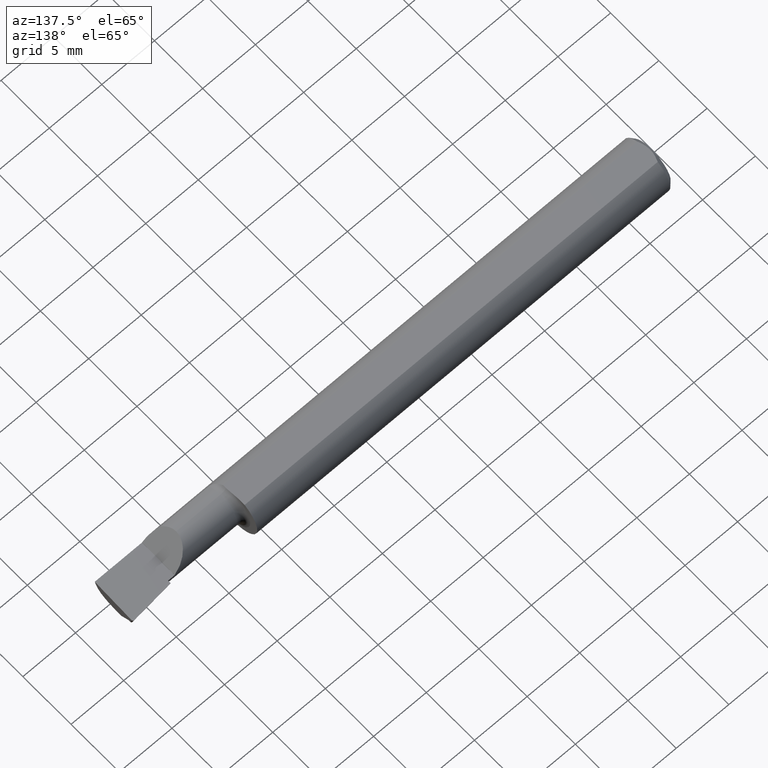
[diagram: clean part render]
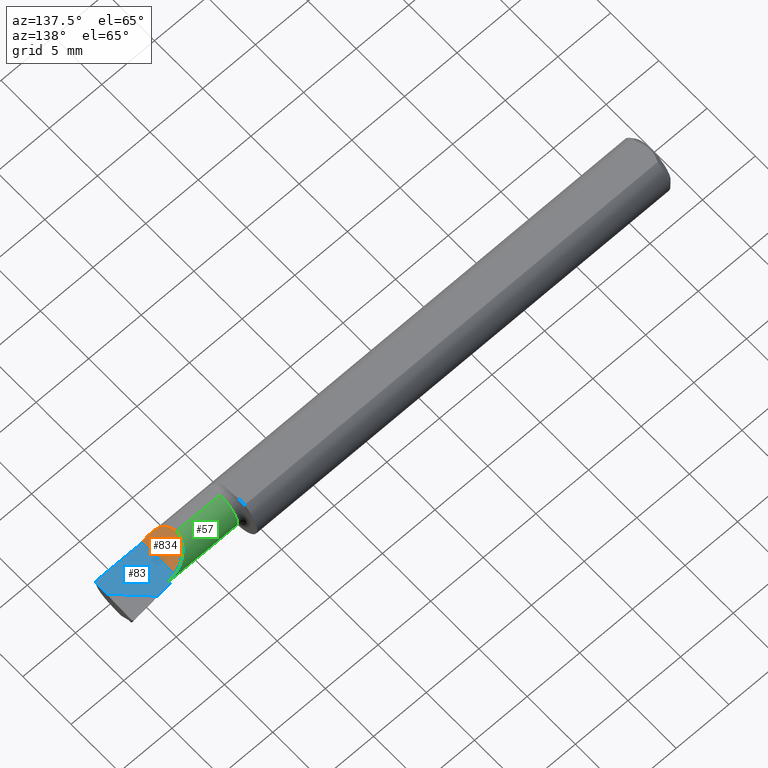
[diagram: same view with three faces highlighted in distinct colors, each labeled with its STEP entity id]
A machine part, auxiliary view with three faces highlighted in distinct colors.
Their STEP definitions:

[orange] entity #834 — the highlighted planar face has unit normal (0.7071, 0, 0.7071).
#31 = ORIENTED_EDGE ( 'NONE', *, *, #741, .T. ) ;
#37 = AXIS2_PLACEMENT_3D ( 'NONE', #744, #1125, #543 ) ;
#38 = ORIENTED_EDGE ( 'NONE', *, *, #138, .T. ) ;
#42 = CARTESIAN_POINT ( 'NONE',  ( 46.22800000000000153, -2.377391153344354358, 0.01523999999999297618 ) ) ;
#47 = VECTOR ( 'NONE', #1232, 1000.000000000000000 ) ;
#127 = EDGE_CURVE ( 'NONE', #228, #262, #1161, .T. ) ;
#138 = EDGE_CURVE ( 'NONE', #1166, #631, #1222, .T. ) ;
#148 = CARTESIAN_POINT ( 'NONE',  ( 46.22800000000000153, 1.026095604484089652, 0.01523999999999579510 ) ) ;
#160 = CARTESIAN_POINT ( 'NONE',  ( 44.43983999999999668, 0.2721022790230253618, 1.803399999999999670 ) ) ;
#170 = EDGE_CURVE ( 'NONE', #262, #631, #289, .T. ) ;
#185 = ORIENTED_EDGE ( 'NONE', *, *, #127, .F. ) ;
#202 = CARTESIAN_POINT ( 'NONE',  ( 44.43983999999998957, -1.203853210690316367, 1.803399999999999670 ) ) ;
#228 = VERTEX_POINT ( 'NONE', #1164 ) ;
#249 =( BOUNDED_CURVE ( )  B_SPLINE_CURVE ( 3, ( #148, #945, #160, #373 ),
 .UNSPECIFIED., .F., .F. ) 
 B_SPLINE_CURVE_WITH_KNOTS ( ( 4, 4 ),
 ( 4.720839785196935701, 6.283185307179586232 ),
 .UNSPECIFIED. ) 
 CURVE ( )  GEOMETRIC_REPRESENTATION_ITEM ( )  RATIONAL_B_SPLINE_CURVE ( ( 1.000000000000000000, 0.8067255137657121100, 0.8067255137657121100, 1.000000000000000000 ) ) 
 REPRESENTATION_ITEM ( '' )  );
#262 = VERTEX_POINT ( 'NONE', #42 ) ;
#289 =( BOUNDED_CURVE ( )  B_SPLINE_CURVE ( 3, ( #975, #591, #693, #882 ),
 .UNSPECIFIED., .F., .F. ) 
 B_SPLINE_CURVE_WITH_KNOTS ( ( 4, 4 ),
 ( 4.718799280696809539, 5.334140324029819524 ),
 .UNSPECIFIED. ) 
 CURVE ( )  GEOMETRIC_REPRESENTATION_ITEM ( )  RATIONAL_B_SPLINE_CURVE ( ( 1.000000000000000000, 0.9686944085491864254, 0.9686944085491864254, 1.000000000000000000 ) ) 
 REPRESENTATION_ITEM ( '' )  );
#315 = CARTESIAN_POINT ( 'NONE',  ( 44.58518233795818020, -1.604944766737493644, 1.658057662041803715 ) ) ;
#373 = CARTESIAN_POINT ( 'NONE',  ( 44.43983999999998957, -0.7772400000000002640, 1.803399999999999670 ) ) ;
#543 = DIRECTION ( 'NONE',  ( 0.7071067811865487940, 0.000000000000000000, -0.7071067811865463515 ) ) ;
#591 = CARTESIAN_POINT ( 'NONE',  ( 45.73250996477317187, -2.374214869910208581, 0.5107300352268197008 ) ) ;
#631 = VERTEX_POINT ( 'NONE', #1087 ) ;
#676 = CARTESIAN_POINT ( 'NONE',  ( 44.43983999999998957, -0.7772400000000002640, 1.803399999999999670 ) ) ;
#682 = CARTESIAN_POINT ( 'NONE',  ( 44.43983999999998957, -0.7772400000000002640, 1.803399999999999670 ) ) ;
#693 = CARTESIAN_POINT ( 'NONE',  ( 45.26124924613768741, -2.221133849346881295, 0.9819907538622970611 ) ) ;
#741 = EDGE_CURVE ( 'NONE', #228, #1166, #249, .T. ) ;
#744 = CARTESIAN_POINT ( 'NONE',  ( 46.22800000000000153, 3.174999999999998934, 0.01523999999999579510 ) ) ;
#834 = ADVANCED_FACE ( 'NONE', ( #939 ), #1015, .T. ) ;
#863 = CARTESIAN_POINT ( 'NONE',  ( 44.85847713066682019, -1.932524967320258247, 1.384762869333169277 ) ) ;
#882 = CARTESIAN_POINT ( 'NONE',  ( 44.85847713066682019, -1.932524967320258247, 1.384762869333169277 ) ) ;
#939 = FACE_OUTER_BOUND ( 'NONE', #1089, .T. ) ;
#945 = CARTESIAN_POINT ( 'NONE',  ( 45.17869519072158369, 1.017227923252913335, 1.064544809278413107 ) ) ;
#975 = CARTESIAN_POINT ( 'NONE',  ( 46.22800000000000153, -2.377391153344354358, 0.01523999999999297618 ) ) ;
#977 = ORIENTED_EDGE ( 'NONE', *, *, #170, .F. ) ;
#1015 = PLANE ( 'NONE',  #37 ) ;
#1087 = CARTESIAN_POINT ( 'NONE',  ( 44.85847713066682019, -1.932524967320258247, 1.384762869333169277 ) ) ;
#1089 = EDGE_LOOP ( 'NONE', ( #185, #31, #38, #977 ) ) ;
#1125 = DIRECTION ( 'NONE',  ( 0.7071067811865463515, -0.000000000000000000, 0.7071067811865487940 ) ) ;
#1151 = CARTESIAN_POINT ( 'NONE',  ( 46.22800000000000153, -1.069216311139973508, 0.01523999999999579510 ) ) ;
#1161 = LINE ( 'NONE', #1151, #47 ) ;
#1164 = CARTESIAN_POINT ( 'NONE',  ( 46.22800000000000153, 1.026095604484089652, 0.01523999999999579510 ) ) ;
#1166 = VERTEX_POINT ( 'NONE', #676 ) ;
#1222 =( BOUNDED_CURVE ( )  B_SPLINE_CURVE ( 3, ( #682, #202, #315, #863 ),
 .UNSPECIFIED., .F., .F. ) 
 B_SPLINE_CURVE_WITH_KNOTS ( ( 4, 4 ),
 ( 0.000000000000000000, 0.6952988339019301467 ),
 .UNSPECIFIED. ) 
 CURVE ( )  GEOMETRIC_REPRESENTATION_ITEM ( )  RATIONAL_B_SPLINE_CURVE ( ( 1.000000000000000000, 0.9601174178332920750, 0.9601174178332920750, 1.000000000000000000 ) ) 
 REPRESENTATION_ITEM ( '' )  );
#1232 = DIRECTION ( 'NONE',  ( 0.000000000000000000, -1.000000000000000000, 0.000000000000000000 ) ) ;

[blue] entity #83 — the highlighted planar face has unit normal (0, 0, -1).
#56 = DIRECTION ( 'NONE',  ( -1.000000000000000000, 0.000000000000000000, 0.000000000000000000 ) ) ;
#58 = ORIENTED_EDGE ( 'NONE', *, *, #174, .F. ) ;
#66 = VERTEX_POINT ( 'NONE', #1210 ) ;
#68 = CARTESIAN_POINT ( 'NONE',  ( 48.19649999999999324, 1.435871463017705629, 0.000000000000000000 ) ) ;
#76 = EDGE_CURVE ( 'NONE', #442, #66, #167, .T. ) ;
#83 = ADVANCED_FACE ( 'NONE', ( #274 ), #1016, .F. ) ;
#91 = AXIS2_PLACEMENT_3D ( 'NONE', #156, #544, #56 ) ;
#131 = VECTOR ( 'NONE', #558, 1000.000000000000000 ) ;
#141 = CARTESIAN_POINT ( 'NONE',  ( 50.85079380910103453, 3.053038803620905295, -6.505213034913026604E-16 ) ) ;
#149 = ORIENTED_EDGE ( 'NONE', *, *, #154, .F. ) ;
#154 = EDGE_CURVE ( 'NONE', #1117, #284, #308, .T. ) ;
#156 = CARTESIAN_POINT ( 'NONE',  ( 46.22800000000000153, 3.174999999999999822, -6.505213034913026604E-16 ) ) ;
#166 = LINE ( 'NONE', #1103, #726 ) ;
#167 = LINE ( 'NONE', #946, #131 ) ;
#174 = EDGE_CURVE ( 'NONE', #442, #737, #1237, .T. ) ;
#207 = DIRECTION ( 'NONE',  ( -1.000000000000000000, -0.000000000000000000, -0.000000000000000000 ) ) ;
#274 = FACE_OUTER_BOUND ( 'NONE', #662, .T. ) ;
#284 = VERTEX_POINT ( 'NONE', #331 ) ;
#295 = CARTESIAN_POINT ( 'NONE',  ( 50.79999999999999716, -1.167628536982268761, 0.000000000000000000 ) ) ;
#305 = VECTOR ( 'NONE', #723, 1000.000000000000000 ) ;
#308 = LINE ( 'NONE', #389, #917 ) ;
#331 = CARTESIAN_POINT ( 'NONE',  ( 46.22800000000000153, 1.026159999999999739, -6.505213034913026604E-16 ) ) ;
#354 = VECTOR ( 'NONE', #207, 1000.000000000000000 ) ;
#366 = DIRECTION ( 'NONE',  ( 0.000000000000000000, 1.000000000000000000, 0.000000000000000000 ) ) ;
#385 = VECTOR ( 'NONE', #675, 1000.000000000000114 ) ;
#389 = CARTESIAN_POINT ( 'NONE',  ( 46.22800000000000153, 3.174999999999999822, -6.505213034913026604E-16 ) ) ;
#423 = ORIENTED_EDGE ( 'NONE', *, *, #733, .F. ) ;
#442 = VERTEX_POINT ( 'NONE', #68 ) ;
#511 = ORIENTED_EDGE ( 'NONE', *, *, #76, .T. ) ;
#544 = DIRECTION ( 'NONE',  ( -0.000000000000000000, 0.000000000000000000, -1.000000000000000000 ) ) ;
#558 = DIRECTION ( 'NONE',  ( -0.9953961983671787417, -0.09584575252022446701, 0.000000000000000000 ) ) ;
#568 = CARTESIAN_POINT ( 'NONE',  ( 50.79999999999999716, -2.377439999999999998, -6.505213034913026604E-16 ) ) ;
#573 = ORIENTED_EDGE ( 'NONE', *, *, #713, .F. ) ;
#590 = CARTESIAN_POINT ( 'NONE',  ( 46.86299999999999955, 1.026159999999999739, -6.505213034913026604E-16 ) ) ;
#600 = VERTEX_POINT ( 'NONE', #717 ) ;
#610 = CARTESIAN_POINT ( 'NONE',  ( 39.62400000000000233, 1.026159999999999739, -6.505213034913026604E-16 ) ) ;
#658 = EDGE_CURVE ( 'NONE', #600, #737, #1005, .T. ) ;
#662 = EDGE_LOOP ( 'NONE', ( #790, #58, #511, #423, #573, #149, #1012 ) ) ;
#675 = DIRECTION ( 'NONE',  ( 0.7071067811865513475, -0.7071067811865435759, -0.000000000000000000 ) ) ;
#688 = DIRECTION ( 'NONE',  ( -0.000000000000000000, 1.000000000000000000, -0.000000000000000000 ) ) ;
#713 = EDGE_CURVE ( 'NONE', #284, #1107, #1081, .T. ) ;
#717 = CARTESIAN_POINT ( 'NONE',  ( 50.70752380417522431, -2.377440000000000442, -3.252606517456513302E-16 ) ) ;
#723 = DIRECTION ( 'NONE',  ( 0.02637339639455558299, 0.9996521614854917415, 0.000000000000000000 ) ) ;
#726 = VECTOR ( 'NONE', #366, 1000.000000000000000 ) ;
#733 = EDGE_CURVE ( 'NONE', #1107, #66, #166, .T. ) ;
#737 = VERTEX_POINT ( 'NONE', #825 ) ;
#754 = VECTOR ( 'NONE', #993, 1000.000000000000000 ) ;
#790 = ORIENTED_EDGE ( 'NONE', *, *, #658, .T. ) ;
#825 = CARTESIAN_POINT ( 'NONE',  ( 50.74099835886113397, -1.108626895843400018, 0.000000000000000000 ) ) ;
#917 = VECTOR ( 'NONE', #688, 1000.000000000000000 ) ;
#946 = CARTESIAN_POINT ( 'NONE',  ( 46.41200412917777385, 1.264044054103794723, -6.505213034913026604E-16 ) ) ;
#967 = CARTESIAN_POINT ( 'NONE',  ( 46.22800000000000153, -2.377439999999999998, -6.505213034913026604E-16 ) ) ;
#993 = DIRECTION ( 'NONE',  ( 1.000000000000000000, 0.000000000000000000, 0.000000000000000000 ) ) ;
#1005 = LINE ( 'NONE', #141, #305 ) ;
#1012 = ORIENTED_EDGE ( 'NONE', *, *, #1105, .F. ) ;
#1016 = PLANE ( 'NONE',  #91 ) ;
#1064 = LINE ( 'NONE', #568, #354 ) ;
#1081 = LINE ( 'NONE', #610, #754 ) ;
#1103 = CARTESIAN_POINT ( 'NONE',  ( 46.86299999999999955, 3.174999999999999822, -6.505213034913026604E-16 ) ) ;
#1105 = EDGE_CURVE ( 'NONE', #600, #1117, #1064, .T. ) ;
#1107 = VERTEX_POINT ( 'NONE', #590 ) ;
#1117 = VERTEX_POINT ( 'NONE', #967 ) ;
#1210 = CARTESIAN_POINT ( 'NONE',  ( 46.86299999999999955, 1.307470017246287863, -6.505213034913026604E-16 ) ) ;
#1237 = LINE ( 'NONE', #295, #385 ) ;

[green] entity #57 — the highlighted cylindrical surface (edge-blend (fillet) strip) has radius 1.8034 mm, axis along (-1, -0, -0).
#21 = CARTESIAN_POINT ( 'NONE',  ( 46.74000983314125079, 0.7130537287253959633, -1.114345029246425200 ) ) ;
#29 = CARTESIAN_POINT ( 'NONE',  ( 46.77062405688231195, 0.3951128588743209047, -1.445105192148193662 ) ) ;
#36 = VERTEX_POINT ( 'NONE', #1127 ) ;
#57 = ADVANCED_FACE ( 'NONE', ( #562 ), #182, .T. ) ;
#73 = VERTEX_POINT ( 'NONE', #1030 ) ;
#98 = CARTESIAN_POINT ( 'NONE',  ( 46.86299999999999955, -0.7772400000000000420, -1.803399999999999670 ) ) ;
#109 = VERTEX_POINT ( 'NONE', #98 ) ;
#117 = DIRECTION ( 'NONE',  ( 0.000000000000000000, 0.000000000000000000, -1.000000000000000000 ) ) ;
#140 = CARTESIAN_POINT ( 'NONE',  ( 46.71170795838030898, 0.8887238055960086092, -0.6905187603853087941 ) ) ;
#148 = CARTESIAN_POINT ( 'NONE',  ( 46.22800000000000153, 1.026095604484089652, 0.01523999999999579510 ) ) ;
#160 = CARTESIAN_POINT ( 'NONE',  ( 44.43983999999999668, 0.2721022790230253618, 1.803399999999999670 ) ) ;
#178 = EDGE_CURVE ( 'NONE', #1205, #73, #773, .T. ) ;
#182 = CYLINDRICAL_SURFACE ( 'NONE', #213, 1.803399999999999670 ) ;
#184 = EDGE_CURVE ( 'NONE', #284, #228, #1073, .T. ) ;
#191 = DIRECTION ( 'NONE',  ( 0.000000000000000000, 0.000000000000000000, 1.000000000000000000 ) ) ;
#213 = AXIS2_PLACEMENT_3D ( 'NONE', #265, #1225, #644 ) ;
#220 = CARTESIAN_POINT ( 'NONE',  ( 39.62400000000000233, -0.7772400000000000420, -1.803399999999999670 ) ) ;
#227 = DIRECTION ( 'NONE',  ( 0.000000000000000000, 0.000000000000000000, -1.000000000000000000 ) ) ;
#228 = VERTEX_POINT ( 'NONE', #1164 ) ;
#239 = DIRECTION ( 'NONE',  ( -1.000000000000000000, -0.000000000000000000, -0.000000000000000000 ) ) ;
#249 =( BOUNDED_CURVE ( )  B_SPLINE_CURVE ( 3, ( #148, #945, #160, #373 ),
 .UNSPECIFIED., .F., .F. ) 
 B_SPLINE_CURVE_WITH_KNOTS ( ( 4, 4 ),
 ( 4.720839785196935701, 6.283185307179586232 ),
 .UNSPECIFIED. ) 
 CURVE ( )  GEOMETRIC_REPRESENTATION_ITEM ( )  RATIONAL_B_SPLINE_CURVE ( ( 1.000000000000000000, 0.8067255137657121100, 0.8067255137657121100, 1.000000000000000000 ) ) 
 REPRESENTATION_ITEM ( '' )  );
#265 = CARTESIAN_POINT ( 'NONE',  ( 39.62400000000000233, -0.7772400000000002640, 0.000000000000000000 ) ) ;
#279 = CARTESIAN_POINT ( 'NONE',  ( 46.76318457633242787, 0.8850265408172950377, -0.6994388790763695907 ) ) ;
#281 = EDGE_CURVE ( 'NONE', #109, #346, #1170, .T. ) ;
#284 = VERTEX_POINT ( 'NONE', #331 ) ;
#304 = CARTESIAN_POINT ( 'NONE',  ( 46.84197244036048602, -0.01398209182515827535, -1.633923446870052976 ) ) ;
#331 = CARTESIAN_POINT ( 'NONE',  ( 46.22800000000000153, 1.026159999999999739, -6.505213034913026604E-16 ) ) ;
#346 = VERTEX_POINT ( 'NONE', #850 ) ;
#349 = ORIENTED_EDGE ( 'NONE', *, *, #1182, .T. ) ;
#358 = CARTESIAN_POINT ( 'NONE',  ( 46.81361634120838033, 0.8812577549432994983, -0.7083290161586911493 ) ) ;
#373 = CARTESIAN_POINT ( 'NONE',  ( 44.43983999999998957, -0.7772400000000002640, 1.803399999999999670 ) ) ;
#402 = CARTESIAN_POINT ( 'NONE',  ( 46.79934697924402798, -0.02144222578813860872, -1.637382449062036560 ) ) ;
#411 = CARTESIAN_POINT ( 'NONE',  ( 46.86299999999999955, -0.7772400000000002640, 0.000000000000000000 ) ) ;
#426 = CARTESIAN_POINT ( 'NONE',  ( 40.25899999999999324, -0.7772400000000002640, 1.803399999999999670 ) ) ;
#431 = CARTESIAN_POINT ( 'NONE',  ( 46.79934697924402798, -0.02144222578813860872, -1.637382449062036560 ) ) ;
#451 = EDGE_CURVE ( 'NONE', #73, #36, #1052, .T. ) ;
#479 = ORIENTED_EDGE ( 'NONE', *, *, #603, .T. ) ;
#499 = DIRECTION ( 'NONE',  ( -1.000000000000000000, -0.000000000000000000, -0.000000000000000000 ) ) ;
#516 = CARTESIAN_POINT ( 'NONE',  ( 40.25899999999999324, -0.7772400000000002640, 0.000000000000000000 ) ) ;
#518 = CIRCLE ( 'NONE', #680, 1.803399999999999670 ) ;
#538 = AXIS2_PLACEMENT_3D ( 'NONE', #696, #812, #117 ) ;
#562 = FACE_OUTER_BOUND ( 'NONE', #821, .T. ) ;
#590 = CARTESIAN_POINT ( 'NONE',  ( 46.86299999999999955, 1.026159999999999739, -6.505213034913026604E-16 ) ) ;
#603 = EDGE_CURVE ( 'NONE', #346, #640, #840, .T. ) ;
#605 = DIRECTION ( 'NONE',  ( 0.000000000000000000, 0.000000000000000000, 1.000000000000000000 ) ) ;
#610 = CARTESIAN_POINT ( 'NONE',  ( 39.62400000000000233, 1.026159999999999739, -6.505213034913026604E-16 ) ) ;
#623 = DIRECTION ( 'NONE',  ( 1.000000000000000000, 0.000000000000000000, 0.000000000000000000 ) ) ;
#640 = VERTEX_POINT ( 'NONE', #426 ) ;
#644 = DIRECTION ( 'NONE',  ( 0.000000000000000000, 0.000000000000000000, 1.000000000000000000 ) ) ;
#649 = CARTESIAN_POINT ( 'NONE',  ( 46.86299999999999955, 0.8774176910726183554, -0.7171885981903440843 ) ) ;
#653 = EDGE_CURVE ( 'NONE', #1179, #109, #518, .T. ) ;
#670 = VECTOR ( 'NONE', #499, 1000.000000000000000 ) ;
#676 = CARTESIAN_POINT ( 'NONE',  ( 44.43983999999998957, -0.7772400000000002640, 1.803399999999999670 ) ) ;
#680 = AXIS2_PLACEMENT_3D ( 'NONE', #411, #1092, #605 ) ;
#689 = CARTESIAN_POINT ( 'NONE',  ( 46.86299999999999955, -0.01026094027067620679, -1.632174831914988467 ) ) ;
#692 = ORIENTED_EDGE ( 'NONE', *, *, #184, .F. ) ;
#696 = CARTESIAN_POINT ( 'NONE',  ( 46.22800000000000153, -0.7772400000000002640, 0.000000000000000000 ) ) ;
#713 = EDGE_CURVE ( 'NONE', #284, #1107, #1081, .T. ) ;
#741 = EDGE_CURVE ( 'NONE', #228, #1166, #249, .T. ) ;
#754 = VECTOR ( 'NONE', #993, 1000.000000000000000 ) ;
#756 = ORIENTED_EDGE ( 'NONE', *, *, #451, .F. ) ;
#773 =( BOUNDED_CURVE ( )  B_SPLINE_CURVE ( 3, ( #431, #29, #21, #140 ),
 .UNSPECIFIED., .F., .F. ) 
 B_SPLINE_CURVE_WITH_KNOTS ( ( 4, 4 ),
 ( 4.358563880917138533, 5.103979102252804267 ),
 .UNSPECIFIED. ) 
 CURVE ( )  GEOMETRIC_REPRESENTATION_ITEM ( )  RATIONAL_B_SPLINE_CURVE ( ( 1.000000000000000000, 0.9542298769898884814, 0.9542298769898884814, 1.000000000000000000 ) ) 
 REPRESENTATION_ITEM ( '' )  );
#787 = LINE ( 'NONE', #1155, #670 ) ;
#794 = CIRCLE ( 'NONE', #1009, 1.803399999999999670 ) ;
#812 = DIRECTION ( 'NONE',  ( 1.000000000000000000, -0.000000000000000000, 0.000000000000000000 ) ) ;
#821 = EDGE_LOOP ( 'NONE', ( #1212, #948, #479, #1008, #895, #692, #1216, #349, #756, #1116, #828 ) ) ;
#828 = ORIENTED_EDGE ( 'NONE', *, *, #1239, .F. ) ;
#840 = CIRCLE ( 'NONE', #1207, 1.803399999999999670 ) ;
#850 = CARTESIAN_POINT ( 'NONE',  ( 40.25899999999999324, -0.7772400000000000420, -1.803399999999999670 ) ) ;
#858 = CARTESIAN_POINT ( 'NONE',  ( 46.79934697924402798, -0.02144222578813860872, -1.637382449062036560 ) ) ;
#895 = ORIENTED_EDGE ( 'NONE', *, *, #741, .F. ) ;
#896 =( BOUNDED_CURVE ( )  B_SPLINE_CURVE ( 3, ( #689, #304, #1134, #402 ),
 .UNSPECIFIED., .F., .T. ) 
 B_SPLINE_CURVE_WITH_KNOTS ( ( 4, 4 ),
 ( 3.502849053724614414, 3.509688659804561350 ),
 .UNSPECIFIED. ) 
 CURVE ( )  GEOMETRIC_REPRESENTATION_ITEM ( )  RATIONAL_B_SPLINE_CURVE ( ( 1.000000000000000000, 0.9999961016528551294, 0.9999961016528551294, 1.000000000000000000 ) ) 
 REPRESENTATION_ITEM ( '' )  );
#927 = CARTESIAN_POINT ( 'NONE',  ( 46.71170795838030898, 0.8887238055960086092, -0.6905187603853087941 ) ) ;
#945 = CARTESIAN_POINT ( 'NONE',  ( 45.17869519072158369, 1.017227923252913335, 1.064544809278413107 ) ) ;
#948 = ORIENTED_EDGE ( 'NONE', *, *, #281, .T. ) ;
#953 = CARTESIAN_POINT ( 'NONE',  ( 46.86299999999999955, -0.01026094027067620679, -1.632174831914988467 ) ) ;
#992 = EDGE_CURVE ( 'NONE', #1166, #640, #787, .T. ) ;
#993 = DIRECTION ( 'NONE',  ( 1.000000000000000000, 0.000000000000000000, 0.000000000000000000 ) ) ;
#1008 = ORIENTED_EDGE ( 'NONE', *, *, #992, .F. ) ;
#1009 = AXIS2_PLACEMENT_3D ( 'NONE', #1055, #1157, #191 ) ;
#1030 = CARTESIAN_POINT ( 'NONE',  ( 46.71170795838030898, 0.8887238055960086092, -0.6905187603853087941 ) ) ;
#1052 =( BOUNDED_CURVE ( )  B_SPLINE_CURVE ( 3, ( #927, #279, #358, #649 ),
 .UNSPECIFIED., .F., .F. ) 
 B_SPLINE_CURVE_WITH_KNOTS ( ( 4, 4 ),
 ( 2.764273438468897837, 2.780336253454972262 ),
 .UNSPECIFIED. ) 
 CURVE ( )  GEOMETRIC_REPRESENTATION_ITEM ( )  RATIONAL_B_SPLINE_CURVE ( ( 1.000000000000000000, 0.9999784989468016860, 0.9999784989468016860, 1.000000000000000000 ) ) 
 REPRESENTATION_ITEM ( '' )  );
#1055 = CARTESIAN_POINT ( 'NONE',  ( 46.86299999999999955, -0.7772400000000002640, 0.000000000000000000 ) ) ;
#1073 = CIRCLE ( 'NONE', #538, 1.803399999999999670 ) ;
#1081 = LINE ( 'NONE', #610, #754 ) ;
#1092 = DIRECTION ( 'NONE',  ( -1.000000000000000000, -0.000000000000000000, -0.000000000000000000 ) ) ;
#1107 = VERTEX_POINT ( 'NONE', #590 ) ;
#1116 = ORIENTED_EDGE ( 'NONE', *, *, #178, .F. ) ;
#1127 = CARTESIAN_POINT ( 'NONE',  ( 46.86299999999999955, 0.8774176910726183554, -0.7171885981903440843 ) ) ;
#1134 = CARTESIAN_POINT ( 'NONE',  ( 46.82075468406098651, -0.01770920152721290608, -1.635659326019462290 ) ) ;
#1155 = CARTESIAN_POINT ( 'NONE',  ( 39.62400000000000233, -0.7772400000000002640, 1.803399999999999670 ) ) ;
#1157 = DIRECTION ( 'NONE',  ( -1.000000000000000000, -0.000000000000000000, -0.000000000000000000 ) ) ;
#1164 = CARTESIAN_POINT ( 'NONE',  ( 46.22800000000000153, 1.026095604484089652, 0.01523999999999579510 ) ) ;
#1166 = VERTEX_POINT ( 'NONE', #676 ) ;
#1170 = LINE ( 'NONE', #220, #1230 ) ;
#1179 = VERTEX_POINT ( 'NONE', #953 ) ;
#1182 = EDGE_CURVE ( 'NONE', #1107, #36, #794, .T. ) ;
#1205 = VERTEX_POINT ( 'NONE', #858 ) ;
#1207 = AXIS2_PLACEMENT_3D ( 'NONE', #516, #623, #227 ) ;
#1212 = ORIENTED_EDGE ( 'NONE', *, *, #653, .T. ) ;
#1216 = ORIENTED_EDGE ( 'NONE', *, *, #713, .T. ) ;
#1225 = DIRECTION ( 'NONE',  ( -1.000000000000000000, -0.000000000000000000, -0.000000000000000000 ) ) ;
#1230 = VECTOR ( 'NONE', #239, 1000.000000000000000 ) ;
#1239 = EDGE_CURVE ( 'NONE', #1179, #1205, #896, .T. ) ;